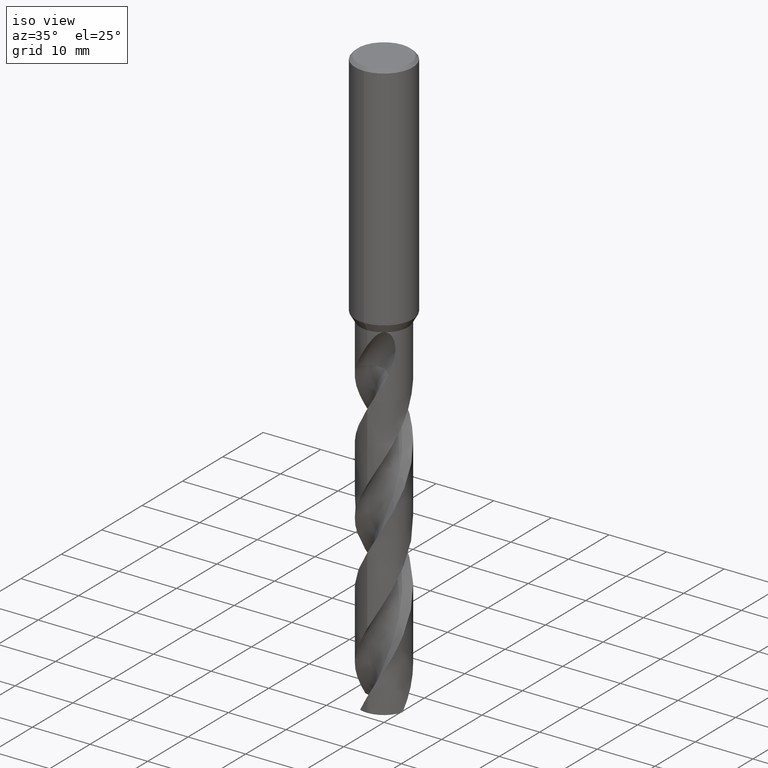
[diagram: clean part render]
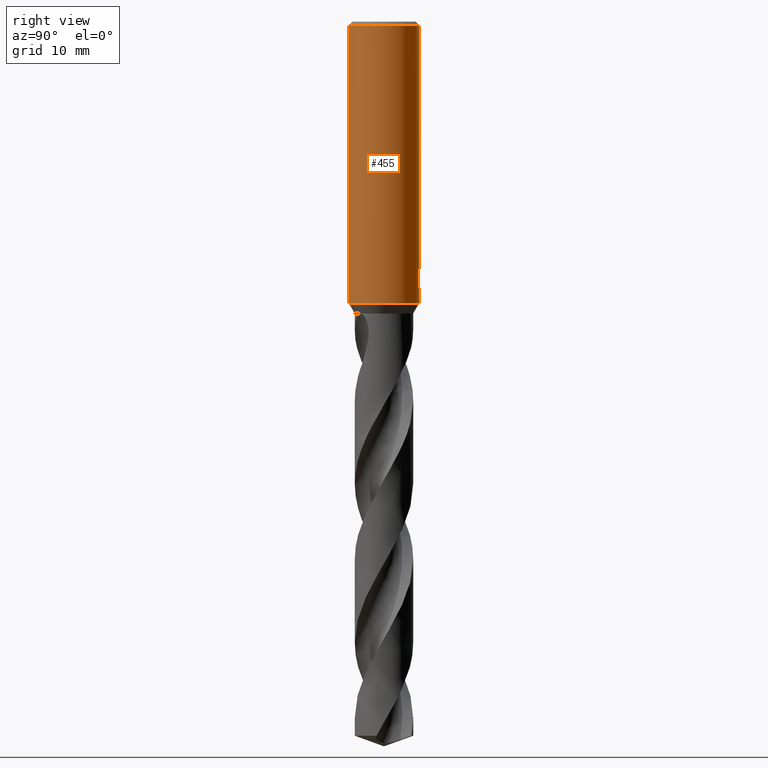
[diagram: tour spotlight — one face highlighted and labeled with its STEP entity id]
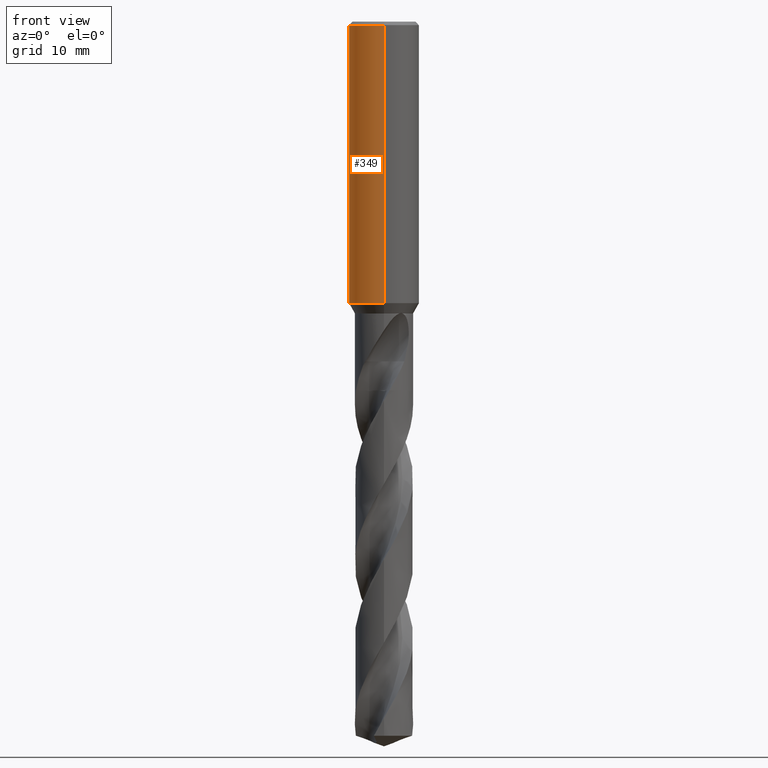
[diagram: tour spotlight — one face highlighted and labeled with its STEP entity id]
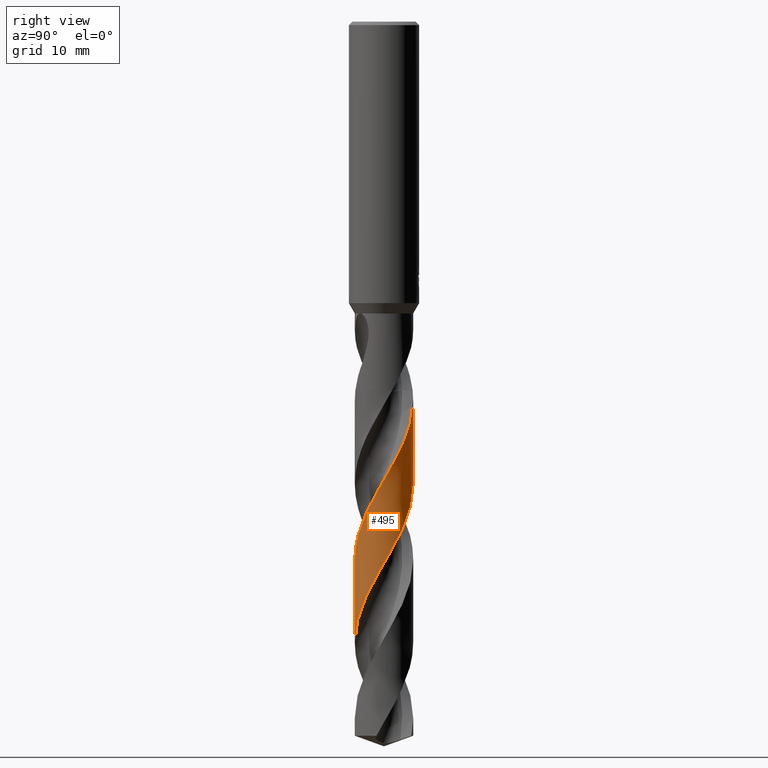
[diagram: tour spotlight — one face highlighted and labeled with its STEP entity id]
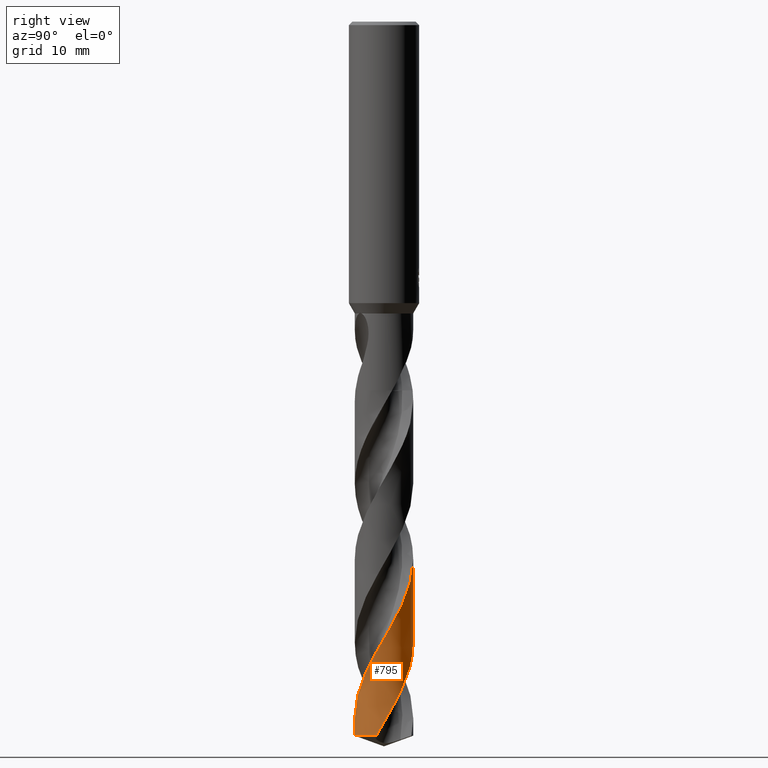
[diagram: tour spotlight — one face highlighted and labeled with its STEP entity id]
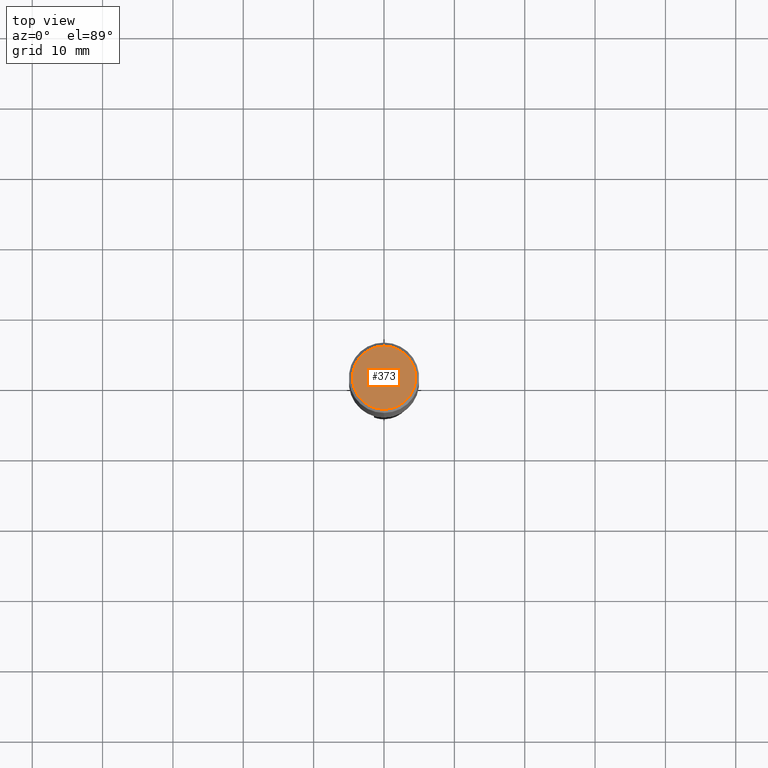
[diagram: tour spotlight — one face highlighted and labeled with its STEP entity id]
A machine part: a face-by-face anatomy tour. The part has 52 B-rep faces; the first image is the clean iso view, then the 5 largest visible faces are spotlighted one at a time (largest first), each with its STEP entity span.

Face 1 — right view, entity #455. In plain terms, the highlighted cylindrical surface (edge-blend (fillet) strip) has radius 5 mm, axis along (-0, -0, 1).
Definition (entity closure, byte-faithful):
#313=VERTEX_POINT('',#884);
#321=VERTEX_POINT('',#892);
#375=VERTEX_POINT('',#954);
#385=EDGE_CURVE('',#627,#621,#964,.T.);
#429=EDGE_CURVE('',#787,#653,#1010,.T.);
#439=VERTEX_POINT('',#1021);
#443=VERTEX_POINT('',#1025);
#455=ADVANCED_FACE('',(#1041),#1042,.T.);
#499=EDGE_CURVE('',#827,#443,#1090,.T.);
#535=EDGE_CURVE('',#375,#439,#1129,.T.);
#621=VERTEX_POINT('',#1222);
#627=VERTEX_POINT('',#1229);
#637=EDGE_CURVE('',#321,#827,#1240,.T.);
#649=VERTEX_POINT('',#1252);
#653=VERTEX_POINT('',#1256);
#655=EDGE_CURVE('',#819,#375,#1258,.T.);
#663=EDGE_CURVE('',#787,#313,#1268,.T.);
#665=EDGE_CURVE('',#439,#321,#1270,.T.);
#787=VERTEX_POINT('',#1403);
#797=EDGE_CURVE('',#443,#313,#1414,.T.);
#811=EDGE_CURVE('',#621,#653,#1431,.T.);
#819=VERTEX_POINT('',#1439);
#825=EDGE_CURVE('',#649,#819,#1445,.T.);
#827=VERTEX_POINT('',#1447);
#833=EDGE_CURVE('',#649,#627,#1453,.T.);
#884=CARTESIAN_POINT('',(-9.82055749138764E-015,5.0,-36.0232688117743));
#892=CARTESIAN_POINT('',(1.33721006514658,4.81786978255646,-37.2901657003257));
#954=CARTESIAN_POINT('',(0.873560781758957,4.92309776061503,-36.3198931596091));
#964=CIRCLE('',#2044,5.0);
#1010=CIRCLE('',#2604,5.0);
#1021=CARTESIAN_POINT('',(0.873560781758956,4.92309776061503,-37.7587351791531));
#1025=CARTESIAN_POINT('',(0.799431726384364,4.93567714856332,-35.000000276873));
#1041=FACE_OUTER_BOUND('',#2727,.T.);
#1042=CYLINDRICAL_SURFACE('',#2728,5.0);
#1090=B_SPLINE_CURVE_WITH_KNOTS('',3,(#3127,#3128,#3129,#3130,#3131,#3132,#3133,#3134,#3135,#3136),.UNSPECIFIED.,.F.,.F.,(4,2,2,2,4),(0.618463277568802,0.927694916353203,1.2369265551376,1.54583876733634,1.85475097953508),.UNSPECIFIED.);
#1129=LINE('',#3291,#3292);
#1222=CARTESIAN_POINT('',(6.12303176911189E-016,-5.0,-40.0));
#1229=CARTESIAN_POINT('',(0.0,5.0,-40.0));
#1240=LINE('',#6021,#6022);
#1252=CARTESIAN_POINT('',(-4.2179236924284E-015,5.0,-38.0310253601033));
#1256=CARTESIAN_POINT('',(6.12303176911189E-016,-5.0,-0.5));
#1258=ELLIPSE('',#6149,15.2399728668489,5.0);
#1268=LINE('',#6484,#6485);
#1270=B_SPLINE_CURVE_WITH_KNOTS('',3,(#6488,#6489,#6490,#6491,#6492,#6493,#6494,#6495,#6496,#6497),.UNSPECIFIED.,.F.,.F.,(4,2,2,2,4),(8.03978938391207,8.34870158568316,8.65761378745426,8.96684541549285,9.27607704353144),.UNSPECIFIED.);
#1403=CARTESIAN_POINT('',(0.0,5.0,-0.5));
#1414=B_SPLINE_CURVE_WITH_KNOTS('',3,(#9426,#9427,#9428,#9429,#9430,#9431,#9432,#9433,#9434,#9435,#9436,#9437,#9438,#9439,#9440,#9441,#9442,#9443,#9444,#9445,#9446,#9447,#9448,#9449,#9450,#9451,#9452),.UNSPECIFIED.,.F.,.F.,(4,2,3,2,2,2,2,2,2,2,2,2,4),(-0.542486104801738,-0.271243052400869,0.0,0.271243052400869,0.542486104801738,0.814298814936944,1.08611152507215,1.35696845964793,1.62782539422372,1.89896433698445,2.17010327974519,2.44124222250593,2.71238116526667),.UNSPECIFIED.);
#1431=LINE('',#9474,#9475);
#1439=CARTESIAN_POINT('',(0.29010312703583,4.99157692274536,-37.9998328990228));
#1445=B_SPLINE_CURVE_WITH_KNOTS('',3,(#9492,#9493,#9494,#9495,#9496,#9497,#9498,#9499,#9500,#9501,#9502,#9503,#9504,#9505,#9506,#9507),.UNSPECIFIED.,.F.,.F.,(4,2,2,2,2,2,2,4),(5.87517564836087,6.18447732711524,6.49384941721167,6.80322150730809,7.11259359740452,7.42196568750094,7.73087791711931,8.03979014673767),.UNSPECIFIED.);
#1447=CARTESIAN_POINT('',(1.33721006514658,4.81786978255647,-35.5150484364821));
#1453=LINE('',#9516,#9517);
#2044=AXIS2_PLACEMENT_3D('',#9960,#9961,#9962);
#2604=AXIS2_PLACEMENT_3D('',#9994,#9995,#9996);
#2727=EDGE_LOOP('',(#10046,#10047,#10048,#10049,#10050,#10051,#10052,#10053,#10054,#10055,#10056,#10057));
#2728=AXIS2_PLACEMENT_3D('',#10058,#10059,#10060);
#3127=CARTESIAN_POINT('',(1.47544634459503,4.77734843655151,-35.7772211678144));
#3128=CARTESIAN_POINT('',(1.43377097583397,4.79021953600577,-35.6770080394811));
#3129=CARTESIAN_POINT('',(1.38199542398865,4.8056132724731,-35.5811155297459));
#3130=CARTESIAN_POINT('',(1.26262396572432,4.83834796156109,-35.4039520264488));
#3131=CARTESIAN_POINT('',(1.19501792490561,4.8556548500921,-35.3226815690952));
#3132=CARTESIAN_POINT('',(1.05119213349515,4.88880718633437,-35.178908059153));
#3133=CARTESIAN_POINT('',(0.969955783216372,4.90584149133193,-35.1113633587199));
#3134=CARTESIAN_POINT('',(0.792829662772183,4.93756175507685,-34.9920776587655));
#3135=CARTESIAN_POINT('',(0.696940397087141,4.95221768350352,-34.9403279265819));
#3136=CARTESIAN_POINT('',(0.596736525802593,4.96426283739822,-34.8986787609541));
#3291=CARTESIAN_POINT('',(0.873560781758957,4.92309776061503,-37.0393141693811));
#3292=VECTOR('',#10126,1.0);
#6021=CARTESIAN_POINT('',(1.33721006514658,4.81786978255646,-36.4026070684039));
#6022=VECTOR('',#10223,1.0);
#6149=AXIS2_PLACEMENT_3D('',#10227,#10228,#10229);
#6484=CARTESIAN_POINT('',(-6.12303176911189E-016,5.0,-20.25));
#6485=VECTOR('',#10261,1.0);
#6488=CARTESIAN_POINT('',(0.596736548110758,4.96426283471664,-37.9065353597382));
#6489=CARTESIAN_POINT('',(0.696940415976904,4.95221768077604,-37.8648861955132));
#6490=CARTESIAN_POINT('',(0.792829678386026,4.93756175251447,-37.8131364650754));
#6491=CARTESIAN_POINT('',(0.969955792779445,4.90584148938556,-37.6938507691423));
#6492=CARTESIAN_POINT('',(1.05119214028325,4.88880718483703,-37.6263060709848));
#6493=CARTESIAN_POINT('',(1.1950179267128,4.85565484960812,-37.4825325659411));
#6494=CARTESIAN_POINT('',(1.26262396516471,4.83834796167932,-37.4012621113954));
#6495=CARTESIAN_POINT('',(1.38199541925443,4.80561327380657,-37.2240986142183));
#6496=CARTESIAN_POINT('',(1.4337709692914,4.79021953794996,-37.1282061077952));
#6497=CARTESIAN_POINT('',(1.47544633659597,4.77734843902196,-37.0279929829259));
#9426=CARTESIAN_POINT('',(0.665122770091172,4.95556371169883,-34.8135963457478));
#9427=CARTESIAN_POINT('',(0.728735196954596,4.94702581852882,-34.8772777273236));
#9428=CARTESIAN_POINT('',(0.783964166103465,4.93829748078097,-34.9579436035979));
#9429=CARTESIAN_POINT('',(0.857301933462898,4.92609533329604,-35.1349114173306));
#9430=CARTESIAN_POINT('',(0.875400981188567,4.92277087849253,-35.2312276617865));
#9431=CARTESIAN_POINT('',(0.875400981188567,4.92277087849253,-35.3216420125868));
#9432=CARTESIAN_POINT('',(0.875400981188567,4.92277087849253,-35.4120563633871));
#9433=CARTESIAN_POINT('',(0.857301933462898,4.92609533329604,-35.5083726078429));
#9434=CARTESIAN_POINT('',(0.783964166103465,4.93829748078097,-35.6853404215757));
#9435=CARTESIAN_POINT('',(0.728735196954596,4.94702581852882,-35.76600629785));
#9436=CARTESIAN_POINT('',(0.601376746032753,4.96411953593411,-35.8935028030135));
#9437=CARTESIAN_POINT('',(0.520641197115554,4.97361399538109,-35.9488552844728));
#9438=CARTESIAN_POINT('',(0.343503822480858,4.98897870858442,-36.0223670116056));
#9439=CARTESIAN_POINT('',(0.247086219827461,4.9947129574863,-36.0405166027747));
#9440=CARTESIAN_POINT('',(0.0662849978754683,5.00037576555244,-36.0405166027747));
#9441=CARTESIAN_POINT('',(-0.0299853354073752,5.00069421157822,-36.022481035651));
#9442=CARTESIAN_POINT('',(-0.207042529230845,4.99649628332508,-35.9491606175219));
#9443=CARTESIAN_POINT('',(-0.287834149954029,4.99211780487336,-35.8938794313977));
#9444=CARTESIAN_POINT('',(-0.415469449620835,4.98311973872716,-35.7663325263823));
#9445=CARTESIAN_POINT('',(-0.470822894462521,4.97792007270922,-35.6855206130663));
#9446=CARTESIAN_POINT('',(-0.544264412763406,4.97042641093864,-35.5083690868499));
#9447=CARTESIAN_POINT('',(-0.562348199187247,4.96827580785033,-35.4120216601737));
#9448=CARTESIAN_POINT('',(-0.562348199187247,4.96827580785033,-35.2312623649999));
#9449=CARTESIAN_POINT('',(-0.544264412763406,4.97042641093864,-35.1349149383237));
#9450=CARTESIAN_POINT('',(-0.470822894462521,4.97792007270922,-34.9577634121072));
#9451=CARTESIAN_POINT('',(-0.415469449620836,4.98311973872716,-34.8769514987913));
#9452=CARTESIAN_POINT('',(-0.351618594554054,4.98762111271133,-34.8131448640467));
#9474=CARTESIAN_POINT('',(6.12303176911189E-016,-5.0,-20.25));
#9475=VECTOR('',#10420,1.0);
#9492=CARTESIAN_POINT('',(-1.37919625933141,4.80601890115366,-37.3124404256203));
#9493=CARTESIAN_POINT('',(-1.31957521374487,4.82312851403775,-37.4009601597598));
#9494=CARTESIAN_POINT('',(-1.25205684175205,4.84126211135571,-37.4821654513649));
#9495=CARTESIAN_POINT('',(-1.10836495207318,4.87616599259845,-37.6259115514073));
#9496=CARTESIAN_POINT('',(-1.0271524301646,4.89418890879516,-37.693486795378));
#9497=CARTESIAN_POINT('',(-0.850055905397219,4.9280353232664,-37.8128453591325));
#9498=CARTESIAN_POINT('',(-0.754172188044363,4.94382885968066,-37.8646375967458));
#9499=CARTESIAN_POINT('',(-0.553725999780852,4.97027232652294,-37.9480281920328));
#9500=CARTESIAN_POINT('',(-0.448990720596507,4.98092390938096,-37.9796924022892));
#9501=CARTESIAN_POINT('',(-0.237871423561604,4.99545922254228,-38.0213202804398));
#9502=CARTESIAN_POINT('',(-0.13148454027928,4.99933459384723,-38.0312723335086));
#9503=CARTESIAN_POINT('',(0.0746069172274575,5.00050365281921,-38.0312723335086));
#9504=CARTESIAN_POINT('',(0.180879006433096,4.99784409598263,-38.021349312763));
#9505=CARTESIAN_POINT('',(0.391840688075154,4.98574204084828,-37.9798000876985));
#9506=CARTESIAN_POINT('',(0.496532945230264,4.97630796240248,-37.9481849619546));
#9507=CARTESIAN_POINT('',(0.596736821506944,4.96426280185264,-37.9065357940623));
#9516=CARTESIAN_POINT('',(-6.12303176911189E-016,5.0,-20.25));
#9517=VECTOR('',#10422,1.0);
#9960=CARTESIAN_POINT('',(0.0,0.0,-40.0));
#9961=DIRECTION('',(0.0,0.0,-1.0));
#9962=DIRECTION('',(0.0,1.0,0.0));
#9994=CARTESIAN_POINT('',(0.0,0.0,-0.5));
#9995=DIRECTION('',(0.0,0.0,-1.0));
#9996=DIRECTION('',(0.0,1.0,0.0));
#10046=ORIENTED_EDGE('',*,*,#663,.F.);
#10047=ORIENTED_EDGE('',*,*,#429,.T.);
#10048=ORIENTED_EDGE('',*,*,#811,.F.);
#10049=ORIENTED_EDGE('',*,*,#385,.F.);
#10050=ORIENTED_EDGE('',*,*,#833,.F.);
#10051=ORIENTED_EDGE('',*,*,#825,.T.);
#10052=ORIENTED_EDGE('',*,*,#655,.T.);
#10053=ORIENTED_EDGE('',*,*,#535,.T.);
#10054=ORIENTED_EDGE('',*,*,#665,.T.);
#10055=ORIENTED_EDGE('',*,*,#637,.T.);
#10056=ORIENTED_EDGE('',*,*,#499,.T.);
#10057=ORIENTED_EDGE('',*,*,#797,.T.);
#10058=CARTESIAN_POINT('',(0.0,0.0,-20.25));
#10059=DIRECTION('',(-0.0,-0.0,1.0));
#10060=DIRECTION('',(0.0,1.0,0.0));
#10126=DIRECTION('',(0.0,0.0,-1.0));
#10223=DIRECTION('',(-0.0,-0.0,1.0));
#10227=CARTESIAN_POINT('',(0.0,0.0,-38.8351219173269));
#10228=DIRECTION('',(0.944648353914092,0.0,-0.328084573619969));
#10229=DIRECTION('',(0.328084573619969,-0.0,0.944648353914092));
#10261=DIRECTION('',(0.0,0.0,-1.0));
#10420=DIRECTION('',(-0.0,-0.0,1.0));
#10422=DIRECTION('',(0.0,0.0,-1.0));

Face 2 — front view, entity #349. In plain terms, the highlighted cylindrical surface (edge-blend (fillet) strip) has radius 5 mm, axis along (-0, -0, 1).
Definition (entity closure, byte-faithful):
#309=VERTEX_POINT('',#880);
#313=VERTEX_POINT('',#884);
#319=EDGE_CURVE('',#621,#627,#890,.T.);
#339=EDGE_CURVE('',#697,#645,#911,.T.);
#349=ADVANCED_FACE('',(#922),#923,.T.);
#359=EDGE_CURVE('',#361,#725,#936,.T.);
#361=VERTEX_POINT('',#938);
#395=EDGE_CURVE('',#309,#697,#974,.T.);
#489=EDGE_CURVE('',#751,#361,#1079,.T.);
#525=EDGE_CURVE('',#313,#751,#1118,.T.);
#561=EDGE_CURVE('',#653,#787,#1158,.T.);
#613=EDGE_CURVE('',#645,#649,#1214,.T.);
#621=VERTEX_POINT('',#1222);
#627=VERTEX_POINT('',#1229);
#645=VERTEX_POINT('',#1248);
#649=VERTEX_POINT('',#1252);
#653=VERTEX_POINT('',#1256);
#663=EDGE_CURVE('',#787,#313,#1268,.T.);
#697=VERTEX_POINT('',#1304);
#725=VERTEX_POINT('',#1335);
#727=EDGE_CURVE('',#725,#309,#1337,.T.);
#751=VERTEX_POINT('',#1365);
#787=VERTEX_POINT('',#1403);
#811=EDGE_CURVE('',#621,#653,#1431,.T.);
#833=EDGE_CURVE('',#649,#627,#1453,.T.);
#880=CARTESIAN_POINT('',(-1.03127136200798E-015,5.0,-36.5000801551882));
#884=CARTESIAN_POINT('',(-9.82055749138764E-015,5.0,-36.0232688117743));
#890=CIRCLE('',#1507,5.0);
#911=ELLIPSE('',#1610,5.5746421602143,5.0);
#922=FACE_OUTER_BOUND('',#1632,.T.);
#923=CYLINDRICAL_SURFACE('',#1633,5.0);
#936=CIRCLE('',#1895,5.0);
#938=CARTESIAN_POINT('',(-0.562333990228013,4.96827741611056,-35.3171221986971));
#974=LINE('',#2071,#2072);
#1079=B_SPLINE_CURVE_WITH_KNOTS('',3,(#3069,#3070,#3071,#3072,#3073,#3074,#3075,#3076,#3077,#3078,#3079,#3080,#3081,#3082,#3083,#3084,#3085,#3086,#3087,#3088,#3089,#3090,#3091,#3092,#3093,#3094,#3095),.UNSPECIFIED.,.F.,.F.,(4,2,3,2,2,2,2,2,2,2,2,2,4),(-0.542486104801738,-0.271243052400869,0.0,0.271243052400869,0.542486104801738,0.814298814936944,1.08611152507215,1.35696845964793,1.62782539422372,1.89896433698445,2.17010327974519,2.44124222250593,2.71238116526667),.UNSPECIFIED.);
#1118=B_SPLINE_CURVE_WITH_KNOTS('',3,(#3249,#3250,#3251,#3252,#3253,#3254,#3255,#3256,#3257,#3258,#3259,#3260,#3261,#3262,#3263,#3264,#3265,#3266,#3267,#3268,#3269,#3270,#3271,#3272,#3273,#3274,#3275),.UNSPECIFIED.,.F.,.F.,(4,2,3,2,2,2,2,2,2,2,2,2,4),(-0.542486104801738,-0.271243052400869,0.0,0.271243052400869,0.542486104801738,0.814298814936944,1.08611152507215,1.35696845964793,1.62782539422372,1.89896433698445,2.17010327974519,2.44124222250593,2.71238116526667),.UNSPECIFIED.);
#1158=CIRCLE('',#4764,5.0);
#1214=B_SPLINE_CURVE_WITH_KNOTS('',3,(#5956,#5957,#5958,#5959,#5960,#5961,#5962,#5963,#5964,#5965,#5966,#5967,#5968,#5969,#5970,#5971),.UNSPECIFIED.,.F.,.F.,(4,2,2,2,2,2,2,4),(5.87517564836087,6.18447732711524,6.49384941721167,6.80322150730809,7.11259359740452,7.42196568750094,7.73087791711931,8.03979014673767),.UNSPECIFIED.);
#1222=CARTESIAN_POINT('',(6.12303176911189E-016,-5.0,-40.0));
#1229=CARTESIAN_POINT('',(0.0,5.0,-40.0));
#1248=CARTESIAN_POINT('',(-1.337052752443,4.81791344226778,-37.3720803908795));
#1252=CARTESIAN_POINT('',(-4.2179236924284E-015,5.0,-38.0310253601033));
#1256=CARTESIAN_POINT('',(6.12303176911189E-016,-5.0,-0.5));
#1268=LINE('',#6484,#6485);
#1304=CARTESIAN_POINT('',(-6.12289151258669E-016,5.0,-36.7128911336578));
#1335=CARTESIAN_POINT('',(-1.0350734039088,4.89168918151191,-35.3171221986971));
#1337=B_SPLINE_CURVE_WITH_KNOTS('',3,(#8432,#8433,#8434,#8435,#8436,#8437,#8438,#8439,#8440,#8441,#8442,#8443,#8444,#8445),.UNSPECIFIED.,.F.,.F.,(4,2,2,2,2,2,4),(3.1333306003147,3.58067338374496,4.02801616717522,4.47535895060548,4.92178692976237,5.36821490891926,5.81712521768469),.UNSPECIFIED.);
#1365=CARTESIAN_POINT('',(-0.486378944383044,4.97628732314171,-35.6432837483006));
#1403=CARTESIAN_POINT('',(0.0,5.0,-0.5));
#1431=LINE('',#9474,#9475);
#1453=LINE('',#9516,#9517);
#1507=AXIS2_PLACEMENT_3D('',#9868,#9869,#9870);
#1610=AXIS2_PLACEMENT_3D('',#9887,#9888,#9889);
#1632=EDGE_LOOP('',(#9904,#9905,#9906,#9907,#9908,#9909,#9910,#9911,#9912,#9913,#9914,#9915));
#1633=AXIS2_PLACEMENT_3D('',#9916,#9917,#9918);
#1895=AXIS2_PLACEMENT_3D('',#9943,#9944,#9945);
#2071=CARTESIAN_POINT('',(-6.12303176911189E-016,5.0,-20.25));
#2072=VECTOR('',#9965,1.0);
#3069=CARTESIAN_POINT('',(0.665122770091172,4.95556371169883,-34.8135963457478));
#3070=CARTESIAN_POINT('',(0.728735196954596,4.94702581852882,-34.8772777273236));
#3071=CARTESIAN_POINT('',(0.783964166103465,4.93829748078097,-34.9579436035979));
#3072=CARTESIAN_POINT('',(0.857301933462898,4.92609533329604,-35.1349114173306));
#3073=CARTESIAN_POINT('',(0.875400981188567,4.92277087849253,-35.2312276617865));
#3074=CARTESIAN_POINT('',(0.875400981188567,4.92277087849253,-35.3216420125868));
#3075=CARTESIAN_POINT('',(0.875400981188567,4.92277087849253,-35.4120563633871));
#3076=CARTESIAN_POINT('',(0.857301933462898,4.92609533329604,-35.5083726078429));
#3077=CARTESIAN_POINT('',(0.783964166103465,4.93829748078097,-35.6853404215757));
#3078=CARTESIAN_POINT('',(0.728735196954596,4.94702581852882,-35.76600629785));
#3079=CARTESIAN_POINT('',(0.601376746032753,4.96411953593411,-35.8935028030135));
#3080=CARTESIAN_POINT('',(0.520641197115554,4.97361399538109,-35.9488552844728));
#3081=CARTESIAN_POINT('',(0.343503822480858,4.98897870858442,-36.0223670116056));
#3082=CARTESIAN_POINT('',(0.247086219827461,4.9947129574863,-36.0405166027747));
#3083=CARTESIAN_POINT('',(0.0662849978754683,5.00037576555244,-36.0405166027747));
#3084=CARTESIAN_POINT('',(-0.0299853354073752,5.00069421157822,-36.022481035651));
#3085=CARTESIAN_POINT('',(-0.207042529230845,4.99649628332508,-35.9491606175219));
#3086=CARTESIAN_POINT('',(-0.287834149954029,4.99211780487336,-35.8938794313977));
#3087=CARTESIAN_POINT('',(-0.415469449620835,4.98311973872716,-35.7663325263823));
#3088=CARTESIAN_POINT('',(-0.470822894462521,4.97792007270922,-35.6855206130663));
#3089=CARTESIAN_POINT('',(-0.544264412763406,4.97042641093864,-35.5083690868499));
#3090=CARTESIAN_POINT('',(-0.562348199187247,4.96827580785033,-35.4120216601737));
#3091=CARTESIAN_POINT('',(-0.562348199187247,4.96827580785033,-35.2312623649999));
#3092=CARTESIAN_POINT('',(-0.544264412763406,4.97042641093864,-35.1349149383237));
#3093=CARTESIAN_POINT('',(-0.470822894462521,4.97792007270922,-34.9577634121072));
#3094=CARTESIAN_POINT('',(-0.415469449620836,4.98311973872716,-34.8769514987913));
#3095=CARTESIAN_POINT('',(-0.351618594554054,4.98762111271133,-34.8131448640467));
#3249=CARTESIAN_POINT('',(0.665122770091172,4.95556371169883,-34.8135963457478));
#3250=CARTESIAN_POINT('',(0.728735196954596,4.94702581852882,-34.8772777273236));
#3251=CARTESIAN_POINT('',(0.783964166103465,4.93829748078097,-34.9579436035979));
#3252=CARTESIAN_POINT('',(0.857301933462898,4.92609533329604,-35.1349114173306));
#3253=CARTESIAN_POINT('',(0.875400981188567,4.92277087849253,-35.2312276617865));
#3254=CARTESIAN_POINT('',(0.875400981188567,4.92277087849253,-35.3216420125868));
#3255=CARTESIAN_POINT('',(0.875400981188567,4.92277087849253,-35.4120563633871));
#3256=CARTESIAN_POINT('',(0.857301933462898,4.92609533329604,-35.5083726078429));
#3257=CARTESIAN_POINT('',(0.783964166103465,4.93829748078097,-35.6853404215757));
#3258=CARTESIAN_POINT('',(0.728735196954596,4.94702581852882,-35.76600629785));
#3259=CARTESIAN_POINT('',(0.601376746032753,4.96411953593411,-35.8935028030135));
#3260=CARTESIAN_POINT('',(0.520641197115554,4.97361399538109,-35.9488552844728));
#3261=CARTESIAN_POINT('',(0.343503822480858,4.98897870858442,-36.0223670116056));
#3262=CARTESIAN_POINT('',(0.247086219827461,4.9947129574863,-36.0405166027747));
#3263=CARTESIAN_POINT('',(0.0662849978754683,5.00037576555244,-36.0405166027747));
#3264=CARTESIAN_POINT('',(-0.0299853354073752,5.00069421157822,-36.022481035651));
#3265=CARTESIAN_POINT('',(-0.207042529230845,4.99649628332508,-35.9491606175219));
#3266=CARTESIAN_POINT('',(-0.287834149954029,4.99211780487336,-35.8938794313977));
#3267=CARTESIAN_POINT('',(-0.415469449620835,4.98311973872716,-35.7663325263823));
#3268=CARTESIAN_POINT('',(-0.470822894462521,4.97792007270922,-35.6855206130663));
#3269=CARTESIAN_POINT('',(-0.544264412763406,4.97042641093864,-35.5083690868499));
#3270=CARTESIAN_POINT('',(-0.562348199187247,4.96827580785033,-35.4120216601737));
#3271=CARTESIAN_POINT('',(-0.562348199187247,4.96827580785033,-35.2312623649999));
#3272=CARTESIAN_POINT('',(-0.544264412763406,4.97042641093864,-35.1349149383237));
#3273=CARTESIAN_POINT('',(-0.470822894462521,4.97792007270922,-34.9577634121072));
#3274=CARTESIAN_POINT('',(-0.415469449620836,4.98311973872716,-34.8769514987913));
#3275=CARTESIAN_POINT('',(-0.351618594554054,4.98762111271133,-34.8131448640467));
#4764=AXIS2_PLACEMENT_3D('',#10156,#10157,#10158);
#5956=CARTESIAN_POINT('',(-1.37919625933141,4.80601890115366,-37.3124404256203));
#5957=CARTESIAN_POINT('',(-1.31957521374487,4.82312851403775,-37.4009601597598));
#5958=CARTESIAN_POINT('',(-1.25205684175205,4.84126211135571,-37.4821654513649));
#5959=CARTESIAN_POINT('',(-1.10836495207318,4.87616599259845,-37.6259115514073));
#5960=CARTESIAN_POINT('',(-1.0271524301646,4.89418890879516,-37.693486795378));
#5961=CARTESIAN_POINT('',(-0.850055905397219,4.9280353232664,-37.8128453591325));
#5962=CARTESIAN_POINT('',(-0.754172188044363,4.94382885968066,-37.8646375967458));
#5963=CARTESIAN_POINT('',(-0.553725999780852,4.97027232652294,-37.9480281920328));
#5964=CARTESIAN_POINT('',(-0.448990720596507,4.98092390938096,-37.9796924022892));
#5965=CARTESIAN_POINT('',(-0.237871423561604,4.99545922254228,-38.0213202804398));
#5966=CARTESIAN_POINT('',(-0.13148454027928,4.99933459384723,-38.0312723335086));
#5967=CARTESIAN_POINT('',(0.0746069172274575,5.00050365281921,-38.0312723335086));
#5968=CARTESIAN_POINT('',(0.180879006433096,4.99784409598263,-38.021349312763));
#5969=CARTESIAN_POINT('',(0.391840688075154,4.98574204084828,-37.9798000876985));
#5970=CARTESIAN_POINT('',(0.496532945230264,4.97630796240248,-37.9481849619546));
#5971=CARTESIAN_POINT('',(0.596736821506944,4.96426280185264,-37.9065357940623));
#6484=CARTESIAN_POINT('',(-6.12303176911189E-016,5.0,-20.25));
#6485=VECTOR('',#10261,1.0);
#8432=CARTESIAN_POINT('',(-0.94469265800956,4.90994458032907,-34.8726918261735));
#8433=CARTESIAN_POINT('',(-1.00520381961469,4.89830199881157,-35.0184504386447));
#8434=CARTESIAN_POINT('',(-1.03510901790186,4.89168164551397,-35.1771875995894));
#8435=CARTESIAN_POINT('',(-1.03510901790186,4.89168164551397,-35.4754161218762));
#8436=CARTESIAN_POINT('',(-1.00520381961469,4.89830199881157,-35.6341532828209));
#8437=CARTESIAN_POINT('',(-0.884181496404448,4.92158716184659,-35.9256705077633));
#8438=CARTESIAN_POINT('',(-0.793087151052211,4.93783860177885,-36.058492898329));
#8439=CARTESIAN_POINT('',(-0.583306946064695,4.96698544190891,-36.2680190096183));
#8440=CARTESIAN_POINT('',(-0.4505605241988,4.98179488059623,-36.3589053581256));
#8441=CARTESIAN_POINT('',(-0.159315965562919,4.99959032724121,-36.4795914963682));
#8442=CARTESIAN_POINT('',(-0.000786407488332613,5.0022138695964,-36.5093686300866));
#8443=CARTESIAN_POINT('',(0.297528991236319,4.99338238693841,-36.5093686300866));
#8444=CARTESIAN_POINT('',(0.45644235283975,4.98128588348605,-36.4792943689047));
#8445=CARTESIAN_POINT('',(0.602168559078807,4.96360685655673,-36.4187026676641));
#9474=CARTESIAN_POINT('',(6.12303176911189E-016,-5.0,-20.25));
#9475=VECTOR('',#10420,1.0);
#9516=CARTESIAN_POINT('',(-6.12303176911189E-016,5.0,-20.25));
#9517=VECTOR('',#10422,1.0);
#9868=CARTESIAN_POINT('',(0.0,0.0,-40.0));
#9869=DIRECTION('',(0.0,0.0,-1.0));
#9870=DIRECTION('',(0.0,1.0,0.0));
#9887=CARTESIAN_POINT('',(0.0,0.0,-36.7128911336578));
#9888=DIRECTION('',(-0.442195774284071,0.0,0.896918556617774));
#9889=DIRECTION('',(0.896918556617774,-0.0,0.442195774284071));
#9904=ORIENTED_EDGE('',*,*,#663,.T.);
#9905=ORIENTED_EDGE('',*,*,#525,.T.);
#9906=ORIENTED_EDGE('',*,*,#489,.T.);
#9907=ORIENTED_EDGE('',*,*,#359,.T.);
#9908=ORIENTED_EDGE('',*,*,#727,.T.);
#9909=ORIENTED_EDGE('',*,*,#395,.T.);
#9910=ORIENTED_EDGE('',*,*,#339,.T.);
#9911=ORIENTED_EDGE('',*,*,#613,.T.);
#9912=ORIENTED_EDGE('',*,*,#833,.T.);
#9913=ORIENTED_EDGE('',*,*,#319,.F.);
#9914=ORIENTED_EDGE('',*,*,#811,.T.);
#9915=ORIENTED_EDGE('',*,*,#561,.T.);
#9916=CARTESIAN_POINT('',(0.0,0.0,-20.25));
#9917=DIRECTION('',(-0.0,-0.0,1.0));
#9918=DIRECTION('',(0.0,1.0,0.0));
#9943=CARTESIAN_POINT('',(0.0,0.0,-35.3171221986971));
#9944=DIRECTION('',(0.0,-0.0,1.0));
#9945=DIRECTION('',(0.0,1.0,0.0));
#9965=DIRECTION('',(0.0,0.0,-1.0));
#10156=CARTESIAN_POINT('',(0.0,0.0,-0.5));
#10157=DIRECTION('',(0.0,0.0,-1.0));
#10158=DIRECTION('',(0.0,1.0,0.0));
#10261=DIRECTION('',(0.0,0.0,-1.0));
#10420=DIRECTION('',(-0.0,-0.0,1.0));
#10422=DIRECTION('',(0.0,0.0,-1.0));

Face 3 — right view, entity #495. In plain terms, the highlighted conical surface has half-angle 0 deg.
Definition (entity closure, byte-faithful):
#407=EDGE_CURVE('',#549,#545,#986,.T.);
#461=VERTEX_POINT('',#1049);
#495=ADVANCED_FACE('',(#1085),#1086,.T.);
#545=VERTEX_POINT('',#1141);
#549=VERTEX_POINT('',#1145);
#555=EDGE_CURVE('',#707,#545,#1152,.T.);
#689=EDGE_CURVE('',#707,#461,#1295,.T.);
#707=VERTEX_POINT('',#1316);
#773=EDGE_CURVE('',#549,#461,#1388,.T.);
#986=B_SPLINE_CURVE_WITH_KNOTS('',3,(#2099,#2100,#2101,#2102,#2103,#2104,#2105,#2106,#2107,#2108,#2109,#2110,#2111,#2112,#2113,#2114,#2115,#2116,#2117,#2118,#2119,#2120,#2121,#2122,#2123,#2124,#2125,#2126,#2127,#2128,#2129,#2130,#2131,#2132,#2133,#2134,#2135,#2136,#2137,#2138,#2139,#2140,#2141,#2142,#2143,#2144,#2145,#2146,#2147,#2148,#2149,#2150,#2151,#2152,#2153,#2154,#2155,#2156,#2157,#2158,#2159,#2160,#2161,#2162,#2163,#2164,#2165,#2166,#2167,#2168,#2169,#2170,#2171,#2172),.UNSPECIFIED.,.F.,.F.,(4,2,2,2,2,2,2,2,2,2,2,2,2,2,2,2,2,2,2,2,2,2,2,2,2,2,2,2,2,2,2,2,2,2,2,2,4),(0.0,0.733119962136167,3.94510879813884,4.34369131643443,5.32151416461971,6.12538844798272,6.17531505432983,7.64100654946401,8.37814269390565,9.8527233512437,10.575811062794,13.3147641823529,15.249658534027,17.2118726950978,19.1514968289801,21.1132472757636,23.0534574584097,25.0148424830024,26.9564301644431,28.9178713151104,30.9513168632988,33.1021604851118,34.7661922859804,36.5871046538584,37.1115938430845,37.9562288501293,41.3386930440463,41.9212233386471,45.3037452177209,45.8576423691643,48.8209535436904,50.3189651381546,53.4896423513451,53.5390767551717,55.1003001866832,55.8799575069006,56.6606755830554),.UNSPECIFIED.);
#1049=CARTESIAN_POINT('',(-9.8340353032395E-013,-4.14994886221189,-76.3862270031662));
#1085=FACE_OUTER_BOUND('',#3121,.T.);
#1086=CONICAL_SURFACE('',#3122,4.14995,2.03709453286926E-006);
#1141=CARTESIAN_POINT('',(-3.68914943617083E-014,4.14992711721499,-65.7117116335733));
#1145=CARTESIAN_POINT('',(6.98160187065E-016,-4.14997308674582,-88.27793528246));
#1152=LINE('',#4755,#4756);
#1295=B_SPLINE_CURVE_WITH_KNOTS('',3,(#6911,#6912,#6913,#6914,#6915,#6916,#6917,#6918,#6919,#6920,#6921,#6922,#6923,#6924,#6925,#6926,#6927,#6928,#6929,#6930,#6931,#6932,#6933,#6934,#6935,#6936,#6937,#6938,#6939,#6940,#6941,#6942,#6943,#6944,#6945,#6946,#6947,#6948,#6949,#6950,#6951,#6952,#6953,#6954,#6955,#6956,#6957,#6958,#6959,#6960,#6961,#6962,#6963,#6964,#6965,#6966,#6967,#6968,#6969,#6970,#6971,#6972,#6973,#6974,#6975,#6976,#6977,#6978,#6979,#6980,#6981,#6982,#6983,#6984,#6985,#6986,#6987,#6988,#6989,#6990),.UNSPECIFIED.,.F.,.F.,(4,2,2,2,2,2,2,2,2,2,2,2,2,2,2,2,2,2,2,2,2,2,2,2,2,2,2,2,2,2,2,2,2,2,2,2,2,2,2,4),(0.0,0.586323067433811,2.00032587518458,2.80826885337776,3.60002817015878,4.36102634170996,4.76487063530696,5.52221860866281,6.87547708728846,7.3452181545955,10.3637754003876,12.139995461408,14.502759818268,15.3668709821972,18.3301455580527,20.1540144764571,22.4042918982399,23.2648435883228,26.1943236443563,28.0619265002188,30.0624330206784,32.0233662836091,34.2830585381587,35.1337158030373,38.0947299511382,39.9172825066326,41.8348863796892,43.852057861484,45.2622052300865,45.9985746502462,46.9813536521083,49.2718370121449,50.1990534031825,51.0079979685766,52.4267538570986,52.6927656751572,53.6929488001075,55.1954998972303,55.9462757200825,56.696452853873),.UNSPECIFIED.);
#1316=CARTESIAN_POINT('',(1.24979024112577E-013,4.14990288187069,-53.8146965918974));
#1388=LINE('',#9299,#9300);
#2099=CARTESIAN_POINT('',(-4.00286083124982,1.09526488378203,-101.489523527795));
#2100=CARTESIAN_POINT('',(-4.03504066271313,0.977655728950244,-101.277743299675));
#2101=CARTESIAN_POINT('',(-4.06201011384078,0.858797654476587,-101.064850626866));
#2102=CARTESIAN_POINT('',(-4.17914587385562,0.210965987961346,-99.9207766518387));
#2103=CARTESIAN_POINT('',(-4.17149755588382,-0.330608218742273,-99.0052227548003));
#2104=CARTESIAN_POINT('',(-4.04702340763602,-0.921129931299631,-97.9593980896529));
#2105=CARTESIAN_POINT('',(-4.03172994710662,-0.985910536822844,-97.843831378145));
#2106=CARTESIAN_POINT('',(-3.97357622724045,-1.20820974671838,-97.4453482115644));
#2107=CARTESIAN_POINT('',(-3.92294640169079,-1.36369350358373,-97.1630093298879));
#2108=CARTESIAN_POINT('',(-3.8141033179038,-1.64106902712961,-96.6475302097936));
#2109=CARTESIAN_POINT('',(-3.75899442182016,-1.7636247738402,-96.4152861525449));
#2110=CARTESIAN_POINT('',(-3.6943372460219,-1.89059560983668,-96.1680921449709));
#2111=CARTESIAN_POINT('',(-3.69053573211859,-1.89800562287905,-96.1536413678278));
#2112=CARTESIAN_POINT('',(-3.5742942749695,-2.12291440030594,-95.7144563261599));
#2113=CARTESIAN_POINT('',(-3.44275266010804,-2.33024441643967,-95.2921013555985));
#2114=CARTESIAN_POINT('',(-3.2184128193831,-2.62286627300436,-94.6543537529134));
#2115=CARTESIAN_POINT('',(-3.13905767063328,-2.71733091713232,-94.4407123580425));
#2116=CARTESIAN_POINT('',(-2.88883969380872,-2.98960847752257,-93.8003976103759));
#2117=CARTESIAN_POINT('',(-2.70643187817836,-3.15562739345708,-93.3758597433649));
#2118=CARTESIAN_POINT('',(-2.41480373869133,-3.37721743262094,-92.7389793771779));
#2119=CARTESIAN_POINT('',(-2.31552818942792,-3.44605829696359,-92.5284513332559));
#2120=CARTESIAN_POINT('',(-1.82547022316747,-3.755002535148,-91.5235418678276));
#2121=CARTESIAN_POINT('',(-1.40007492136837,-3.93348288653247,-90.7451698808831));
#2122=CARTESIAN_POINT('',(-0.638700762875209,-4.11330122043334,-89.3902404456546));
#2123=CARTESIAN_POINT('',(-0.315930275489004,-4.150641464583,-88.8241412346744));
#2124=CARTESIAN_POINT('',(0.337806485620592,-4.14927706743415,-87.6939062714144));
#2125=CARTESIAN_POINT('',(0.665493723450718,-4.10943836864885,-87.1311549892286));
#2126=CARTESIAN_POINT('',(1.30062518471142,-3.9542693037718,-85.999542964849));
#2127=CARTESIAN_POINT('',(1.6060438598501,-3.84041913324769,-85.4323270855775));
#2128=CARTESIAN_POINT('',(2.18850943928793,-3.54133233999955,-84.3006472206212));
#2129=CARTESIAN_POINT('',(2.4622464239698,-3.35673622004514,-83.7378304449957));
#2130=CARTESIAN_POINT('',(2.95743497346943,-2.92942538638761,-82.6059180029684));
#2131=CARTESIAN_POINT('',(3.177644092677,-2.68900715728512,-82.0383217950532));
#2132=CARTESIAN_POINT('',(3.56019809962554,-2.157655759826,-80.9063583493413));
#2133=CARTESIAN_POINT('',(3.71995498628274,-1.86875357326637,-80.3435892494735));
#2134=CARTESIAN_POINT('',(3.9666132691593,-1.26257379099911,-79.2113491623315));
#2135=CARTESIAN_POINT('',(4.05331615848658,-0.948080209579002,-78.6433720256095));
#2136=CARTESIAN_POINT('',(4.15210135779381,-0.30073966376471,-77.5110211287447));
#2137=CARTESIAN_POINT('',(4.16286243563838,0.0292031213900084,-76.9482542342553));
#2138=CARTESIAN_POINT('',(4.1052444577117,0.696644840980988,-75.7895266640975));
#2139=CARTESIAN_POINT('',(4.03427834066105,1.03107071664337,-75.1947491400784));
#2140=CARTESIAN_POINT('',(3.80522546828506,1.6948692679812,-73.9810175393926));
#2141=CARTESIAN_POINT('',(3.64359698031552,2.01887360692878,-73.3651163403327));
#2142=CARTESIAN_POINT('',(3.28697934412767,2.54859972985332,-72.2580115767764));
#2143=CARTESIAN_POINT('',(3.10850483738276,2.7635547757794,-71.7709921611557));
#2144=CARTESIAN_POINT('',(2.69129450921086,3.17369855010188,-70.7589191275941));
#2145=CARTESIAN_POINT('',(2.45022798092235,3.36332653160746,-70.2352118870299));
#2146=CARTESIAN_POINT('',(2.11550376503302,3.57132612703493,-69.5545369313536));
#2147=CARTESIAN_POINT('',(2.03931561837821,3.61536489135379,-69.4023641816305));
#2148=CARTESIAN_POINT('',(1.83728483742688,3.72375354848006,-69.0045687433204));
#2149=CARTESIAN_POINT('',(1.70974800795879,3.78397939709404,-68.7581366416652));
#2150=CARTESIAN_POINT('',(1.05867954271813,4.05197820978874,-67.5324781895851));
#2151=CARTESIAN_POINT('',(0.500198915509941,4.157918701973,-66.5824873902307));
#2152=CARTESIAN_POINT('',(-0.159278628045266,4.1480007684965,-65.4345537535467));
#2153=CARTESIAN_POINT('',(-0.255827069197382,4.1431671893572,-65.2655329761599));
#2154=CARTESIAN_POINT('',(-0.91316890963133,4.08714268073476,-64.117093673756));
#2155=CARTESIAN_POINT('',(-1.45754746612428,3.92595406521365,-63.1684460864815));
#2156=CARTESIAN_POINT('',(-2.03447362167824,3.61817849226968,-62.0299117236023));
#2157=CARTESIAN_POINT('',(-2.11393608649308,3.57233118946485,-61.8694001149606));
#2158=CARTESIAN_POINT('',(-2.60945298085117,3.26409274044161,-60.8525140771719));
#2159=CARTESIAN_POINT('',(-2.97818509056936,2.93192305082293,-60.0162718507665));
#2160=CARTESIAN_POINT('',(-3.43357947129834,2.34406764895128,-58.7308568167197));
#2161=CARTESIAN_POINT('',(-3.56801388812336,2.13377870463037,-58.2967699271014));
#2162=CARTESIAN_POINT('',(-3.92561355716439,1.44530461308424,-56.9517384287197));
#2163=CARTESIAN_POINT('',(-4.07705321721444,0.936012705416754,-56.0520129936649));
#2164=CARTESIAN_POINT('',(-4.1301640999389,0.404385781712552,-55.1247942966925));
#2165=CARTESIAN_POINT('',(-4.1309547027472,0.396227793785232,-55.1105670046392));
#2166=CARTESIAN_POINT('',(-4.15596300872301,0.129947839233376,-54.6464363698268));
#2167=CARTESIAN_POINT('',(-4.15599510042753,-0.130144303806569,-54.1994393672908));
#2168=CARTESIAN_POINT('',(-4.11948157093959,-0.518075732752643,-53.5256073673882));
#2169=CARTESIAN_POINT('',(-4.10127565016572,-0.646504711659597,-53.3012527130088));
#2170=CARTESIAN_POINT('',(-4.05299455015468,-0.900945878530776,-52.8519320371249));
#2171=CARTESIAN_POINT('',(-4.02311329375068,-1.025975181467,-52.6277129986327));
#2172=CARTESIAN_POINT('',(-3.9876645377204,-1.14900027233581,-52.4048038270217));
#3121=EDGE_LOOP('',(#10089,#10090,#10091,#10092));
#3122=AXIS2_PLACEMENT_3D('',#10093,#10094,#10095);
#4755=CARTESIAN_POINT('',(-5.08271900396723E-016,4.14995,-76.9447617638976));
#4756=VECTOR('',#10152,1.0);
#6911=CARTESIAN_POINT('',(-0.809450641502194,4.07019160860088,-52.4036524301839));
#6912=CARTESIAN_POINT('',(-0.713554071194105,4.08926318517703,-52.5728780666497));
#6913=CARTESIAN_POINT('',(-0.617061507869635,4.10493025676811,-52.7422326771811));
#6914=CARTESIAN_POINT('',(-0.286437898108493,4.14670141869942,-53.3196699330514));
#6915=CARTESIAN_POINT('',(-0.0505770864741414,4.15628267541381,-53.7268509006525));
#6916=CARTESIAN_POINT('',(0.319420468947908,4.1397838602985,-54.3681220203433));
#6917=CARTESIAN_POINT('',(0.453611417218903,4.12723803772816,-54.6011374700635));
#6918=CARTESIAN_POINT('',(0.717674425384147,4.08950957126924,-55.0627661745399));
#6919=CARTESIAN_POINT('',(0.847371198748661,4.06461501494834,-55.2910471673395));
#6920=CARTESIAN_POINT('',(1.09891703601151,4.00377262506163,-55.7392168681408));
#6921=CARTESIAN_POINT('',(1.22076943418806,3.9683171334602,-55.9587997088806));
#6922=CARTESIAN_POINT('',(1.40450965677961,3.90558822200232,-56.2950048140758));
#6923=CARTESIAN_POINT('',(1.46767830751557,3.88229193545421,-56.4115444989714));
#6924=CARTESIAN_POINT('',(1.6476155530438,3.81091154178771,-56.7466765120219));
#6925=CARTESIAN_POINT('',(1.76279246623565,3.75902280952958,-56.9651146678288));
#6926=CARTESIAN_POINT('',(2.0766879031118,3.6000036306962,-57.5742414334145));
#6927=CARTESIAN_POINT('',(2.26932078090337,3.48179139183426,-57.9640123006853));
#6928=CARTESIAN_POINT('',(2.51460993037964,3.30221831129288,-58.4900852976674));
#6929=CARTESIAN_POINT('',(2.57645851427004,3.25419176556882,-58.6255557785414));
#6930=CARTESIAN_POINT('',(3.02531174575587,2.88483915593859,-59.6326795782373));
#6931=CARTESIAN_POINT('',(3.35287544725406,2.49681190181006,-60.4989856153255));
#6932=CARTESIAN_POINT('',(3.75014293693105,1.80172679035776,-61.8828013512578));
#6933=CARTESIAN_POINT('',(3.86910152505008,1.52951649276333,-62.3942119494236));
#6934=CARTESIAN_POINT('',(4.07631739607947,0.871995348235847,-63.589768151126));
#6935=CARTESIAN_POINT('',(4.14075449224596,0.481282815055007,-64.2682467037824));
#6936=CARTESIAN_POINT('',(4.15203703109984,-0.0573410979354688,-65.1995098309693));
#6937=CARTESIAN_POINT('',(4.147534555915,-0.20150380329665,-65.4484810533826));
#6938=CARTESIAN_POINT('',(4.09447556431875,-0.837417899060476,-66.5539029055257));
#6939=CARTESIAN_POINT('',(3.9657189469699,-1.3190801246937,-67.4050175280715));
#6940=CARTESIAN_POINT('',(3.62527935989835,-2.04257202817353,-68.7872557268848));
#6941=CARTESIAN_POINT('',(3.46576062486579,-2.30279007024165,-69.3127294062759));
#6942=CARTESIAN_POINT('',(3.04971665760977,-2.83933682712082,-70.4899836288582));
#6943=CARTESIAN_POINT('',(2.78056343553118,-3.10349907820304,-71.1365655609795));
#6944=CARTESIAN_POINT('',(2.36390319841118,-3.41388652390134,-72.034694649105));
#6945=CARTESIAN_POINT('',(2.24436678802764,-3.49362625238155,-72.282744825843));
#6946=CARTESIAN_POINT('',(1.70103778503728,-3.81670327850428,-73.3778135226615));
#6947=CARTESIAN_POINT('',(1.23972416353378,-3.99058127235028,-74.2197999130246));
#6948=CARTESIAN_POINT('',(0.451650150325278,-4.13708376894307,-75.6054605786079));
#6949=CARTESIAN_POINT('',(0.139721364140183,-4.15926648918934,-76.1436005111664));
#6950=CARTESIAN_POINT('',(-0.504616731665532,-4.13263715039405,-77.2617766905972));
#6951=CARTESIAN_POINT('',(-0.835345142104359,-4.0787289220349,-77.8376544589695));
#6952=CARTESIAN_POINT('',(-1.47104159305374,-3.89429202609177,-78.9818984615329));
#6953=CARTESIAN_POINT('',(-1.77345254431343,-3.76614797249428,-79.5466205790853));
#6954=CARTESIAN_POINT('',(-2.38454153749317,-3.41731381575357,-80.7666714940171));
#6955=CARTESIAN_POINT('',(-2.68511494690212,-3.18666961265347,-81.4161425649724));
#6956=CARTESIAN_POINT('',(-3.05055258240267,-2.81718037099878,-82.3144808522254));
#6957=CARTESIAN_POINT('',(-3.14514757547519,-2.71115661323792,-82.5597910554599));
#6958=CARTESIAN_POINT('',(-3.54366907619769,-2.21555272128551,-83.6615529842133));
#6959=CARTESIAN_POINT('',(-3.78238419383585,-1.77785382716674,-84.5126724485249));
#6960=CARTESIAN_POINT('',(-4.03443561920026,-1.01900899242163,-85.8949450292475));
#6961=CARTESIAN_POINT('',(-4.09823641726694,-0.720496703982164,-86.4204641030282));
#6962=CARTESIAN_POINT('',(-4.16108160178382,-0.0998292351477255,-87.5020034000937));
#6963=CARTESIAN_POINT('',(-4.1564413391571,0.221388044000138,-88.0543744565511));
#6964=CARTESIAN_POINT('',(-4.07098582459152,0.873531620780959,-89.1913149506217));
#6965=CARTESIAN_POINT('',(-3.98665135310596,1.2008388860726,-89.7721246887443));
#6966=CARTESIAN_POINT('',(-3.77819657253114,1.7328652483603,-90.7633556324888));
#6967=CARTESIAN_POINT('',(-3.67390355405256,1.94428336589662,-91.1705457262972));
#6968=CARTESIAN_POINT('',(-3.48850954570904,2.25116984402882,-91.7909765132387));
#6969=CARTESIAN_POINT('',(-3.42023590005435,2.35360968335123,-92.0036277353889));
#6970=CARTESIAN_POINT('',(-3.25037542289483,2.58542023614415,-92.5003947796857));
#6971=CARTESIAN_POINT('',(-3.14553925344656,2.71198856226611,-92.7838687048652));
#6972=CARTESIAN_POINT('',(-2.77244613332795,3.11163590692395,-93.7300998780487));
#6973=CARTESIAN_POINT('',(-2.47395679109492,3.35383349483751,-94.3894989934233));
#6974=CARTESIAN_POINT('',(-2.01412615119345,3.63175758081579,-95.3198955249143));
#6975=CARTESIAN_POINT('',(-1.87722187737927,3.70437917126462,-95.5877850981441));
#6976=CARTESIAN_POINT('',(-1.61383431571763,3.82572937805675,-96.0897422312488));
#6977=CARTESIAN_POINT('',(-1.48844117680785,3.876235738412,-96.3234383923334));
#6978=CARTESIAN_POINT('',(-1.13700787894817,3.99822039506513,-96.9675767607062));
#6979=CARTESIAN_POINT('',(-0.906902875885015,4.05661579831907,-97.3770805773355));
#6980=CARTESIAN_POINT('',(-0.629179473382949,4.10226116804075,-97.8641680797187));
#6981=CARTESIAN_POINT('',(-0.585223795329596,4.10876223263934,-97.9410567313226));
#6982=CARTESIAN_POINT('',(-0.375549316561051,4.13634076711939,-98.3071891062927));
#6983=CARTESIAN_POINT('',(-0.208781880563971,4.1481024138533,-98.5963304693952));
#6984=CARTESIAN_POINT('',(0.209102690613209,4.15231115632249,-99.3201052405814));
#6985=CARTESIAN_POINT('',(0.459778032523291,4.1320821930541,-99.7536734826014));
#6986=CARTESIAN_POINT('',(0.830770416520487,4.06792801501628,-100.405172648677));
#6987=CARTESIAN_POINT('',(0.953362274423475,4.04095655430756,-100.622087688651));
#6988=CARTESIAN_POINT('',(1.1956589551,3.97600445175011,-101.05601521291));
#6989=CARTESIAN_POINT('',(1.31513351348801,3.93809647197319,-101.272505349523));
#6990=CARTESIAN_POINT('',(1.43266879727039,3.8948632989269,-101.489523527795));
#9299=CARTESIAN_POINT('',(5.08139127212312E-016,-4.14995,-76.9447617638976));
#9300=VECTOR('',#10368,1.0);
#10089=ORIENTED_EDGE('',*,*,#555,.F.);
#10090=ORIENTED_EDGE('',*,*,#689,.T.);
#10091=ORIENTED_EDGE('',*,*,#773,.F.);
#10092=ORIENTED_EDGE('',*,*,#407,.T.);
#10093=CARTESIAN_POINT('',(0.0,0.0,-76.9447617638976));
#10094=DIRECTION('',(0.0,-0.0,-1.0));
#10095=DIRECTION('',(0.0,1.0,0.0));
#10152=DIRECTION('',(-2.4946389082868E-022,2.03709453286785E-006,-0.999999999997925));
#10368=DIRECTION('',(-2.4946389082868E-022,2.03709453286785E-006,0.999999999997925));

Face 4 — right view, entity #795. In plain terms, the highlighted conical surface has half-angle 0 deg.
Definition (entity closure, byte-faithful):
#325=EDGE_CURVE('',#533,#519,#896,.T.);
#399=EDGE_CURVE('',#437,#465,#978,.T.);
#437=VERTEX_POINT('',#1019);
#465=VERTEX_POINT('',#1053);
#519=VERTEX_POINT('',#1111);
#533=VERTEX_POINT('',#1127);
#661=EDGE_CURVE('',#857,#519,#1266,.T.);
#793=EDGE_CURVE('',#857,#437,#1409,.T.);
#795=ADVANCED_FACE('',(#1411),#1412,.T.);
#845=EDGE_CURVE('',#533,#465,#1467,.T.);
#857=VERTEX_POINT('',#1480);
#896=LINE('',#1515,#1516);
#978=LINE('',#2078,#2079);
#1019=CARTESIAN_POINT('',(5.08394336519876E-016,-4.15,-101.489523527795));
#1053=CARTESIAN_POINT('',(-9.07167655436125E-015,-4.14999484291635,-98.9579357328024));
#1111=CARTESIAN_POINT('',(-7.58148478319528E-015,4.14997308674581,-88.27793528246));
#1127=CARTESIAN_POINT('',(9.74965893493344E-013,4.1499488622119,-76.3862270031662));
#1266=B_SPLINE_CURVE_WITH_KNOTS('',3,(#6406,#6407,#6408,#6409,#6410,#6411,#6412,#6413,#6414,#6415,#6416,#6417,#6418,#6419,#6420,#6421,#6422,#6423,#6424,#6425,#6426,#6427,#6428,#6429,#6430,#6431,#6432,#6433,#6434,#6435,#6436,#6437,#6438,#6439,#6440,#6441,#6442,#6443,#6444,#6445,#6446,#6447,#6448,#6449,#6450,#6451,#6452,#6453,#6454,#6455,#6456,#6457,#6458,#6459,#6460,#6461,#6462,#6463,#6464,#6465,#6466,#6467,#6468,#6469,#6470,#6471,#6472,#6473,#6474,#6475,#6476,#6477,#6478,#6479,#6480,#6481),.UNSPECIFIED.,.F.,.F.,(4,2,2,2,2,2,2,2,2,2,2,2,2,2,2,2,2,2,2,2,2,2,2,2,2,2,2,2,2,2,2,2,2,2,2,2,2,4),(0.0,0.733119956972787,3.94510880211504,4.34369132015959,5.3215141447552,6.125388429376,6.17531503567606,7.64100653939708,8.37814268858441,9.85272335328517,10.5758110706592,13.3147641877528,15.2496585516679,17.4122792368076,19.0765169832402,21.7618217115342,22.0958350211852,24.0512915420343,25.0094963465441,26.9498401406434,28.9094493709316,30.9614328814431,33.0449450139035,34.7077831832867,37.1913202388205,38.0880866907379,40.5056043126405,41.0414054151769,41.875265929891,45.110675784988,46.0814303767419,48.7278978306769,49.9996101217036,53.31564938732,53.729669338403,55.1829129238803,55.9086577497719,56.6352366159157),.UNSPECIFIED.);
#1409=CIRCLE('',#9420,4.15);
#1411=FACE_OUTER_BOUND('',#9422,.T.);
#1412=CONICAL_SURFACE('',#9423,4.14995,2.03709453286926E-006);
#1467=B_SPLINE_CURVE_WITH_KNOTS('',3,(#9534,#9535,#9536,#9537,#9538,#9539,#9540,#9541,#9542,#9543,#9544,#9545,#9546,#9547,#9548,#9549,#9550,#9551,#9552,#9553,#9554,#9555,#9556,#9557,#9558,#9559,#9560,#9561,#9562,#9563,#9564,#9565,#9566,#9567,#9568,#9569,#9570,#9571,#9572,#9573,#9574,#9575,#9576,#9577,#9578,#9579,#9580,#9581,#9582,#9583,#9584,#9585,#9586,#9587,#9588,#9589,#9590,#9591,#9592,#9593,#9594,#9595,#9596,#9597,#9598,#9599,#9600,#9601,#9602,#9603,#9604,#9605,#9606,#9607,#9608,#9609,#9610,#9611,#9612,#9613),.UNSPECIFIED.,.F.,.F.,(4,2,2,2,2,2,2,2,2,2,2,2,2,2,2,2,2,2,2,2,2,2,2,2,2,2,2,2,2,2,2,2,2,2,2,2,2,2,2,4),(0.0,0.586323067397974,2.00032613615703,2.80826911548813,3.60002841869229,4.36102651510876,4.76487080820289,5.52221863130071,6.87547710358419,7.34521822105129,10.3637755964068,12.1399954549311,14.5027598293149,15.3668709783595,18.3301455355325,20.154014480986,22.4042919037296,23.2648435904533,26.1943236197452,28.0619265198506,30.0624330365859,32.0233662946941,34.2830585457041,35.1337158123236,38.0947299816571,39.9172825349266,41.8348864412134,43.852057847632,45.2622052081388,45.9985746283273,46.981353653121,49.2718368043124,50.1990532215077,51.007997814471,52.4267537420836,52.6927655683565,53.6929487221176,55.195499862631,55.9462757072214,56.6964528627211),.UNSPECIFIED.);
#1480=CARTESIAN_POINT('',(4.00286083124981,-1.09526488378203,-101.489523527795));
#1515=CARTESIAN_POINT('',(-5.08022814120928E-016,4.14995,-76.9447617638976));
#1516=VECTOR('',#9874,1.0);
#2078=CARTESIAN_POINT('',(5.08388213488107E-016,-4.14995,-76.9447617638976));
#2079=VECTOR('',#9969,1.0);
#6406=CARTESIAN_POINT('',(4.00286083124981,-1.09526488378202,-101.489523527795));
#6407=CARTESIAN_POINT('',(4.03504066248648,-0.977655729778559,-101.277743301167));
#6408=CARTESIAN_POINT('',(4.0620101134619,-0.8587976561445,-101.064850629843));
#6409=CARTESIAN_POINT('',(4.17914587398827,-0.210965989100467,-99.9207766537132));
#6410=CARTESIAN_POINT('',(4.17149755603666,0.330608218875049,-99.0052227546464));
#6411=CARTESIAN_POINT('',(4.04702340734772,0.921129932560936,-97.959398087409));
#6412=CARTESIAN_POINT('',(4.03172994681594,0.985910538007184,-97.8438313760292));
#6413=CARTESIAN_POINT('',(3.97357622791485,1.20820974396093,-97.4453482164901));
#6414=CARTESIAN_POINT('',(3.92294640379247,1.36369349705703,-97.1630093417234));
#6415=CARTESIAN_POINT('',(3.81410332213824,1.64106901730107,-96.6475302283008));
#6416=CARTESIAN_POINT('',(3.75899442628936,1.76362476432344,-96.4152861707443));
#6417=CARTESIAN_POINT('',(3.69433725076324,1.89059560057191,-96.1680921630285));
#6418=CARTESIAN_POINT('',(3.69053573688921,1.89800561360276,-96.1536413859247));
#6419=CARTESIAN_POINT('',(3.57429428025914,2.12291439141822,-95.7144563440186));
#6420=CARTESIAN_POINT('',(3.44275266582827,2.33024440801015,-95.2921013731676));
#6421=CARTESIAN_POINT('',(3.21841282557471,2.62286626541515,-94.6543537698572));
#6422=CARTESIAN_POINT('',(3.13905767693198,2.71733090986377,-94.4407123746996));
#6423=CARTESIAN_POINT('',(2.88883970062494,2.98960847093463,-93.8003976267416));
#6424=CARTESIAN_POINT('',(2.70643188540097,3.15562738726885,-93.3758597598053));
#6425=CARTESIAN_POINT('',(2.41480374602771,3.37721742738981,-92.7389793928725));
#6426=CARTESIAN_POINT('',(2.31552819667441,3.44605829210536,-92.5284513484144));
#6427=CARTESIAN_POINT('',(1.8254702332528,3.75500252988792,-91.523541887376));
#6428=CARTESIAN_POINT('',(1.40007493471842,3.93348288145374,-90.7451699051396));
#6429=CARTESIAN_POINT('',(0.638700779342066,4.1133012179047,-89.3902404746062));
#6430=CARTESIAN_POINT('',(0.315930291926815,4.15064146334367,-88.8241412632067));
#6431=CARTESIAN_POINT('',(-0.371424497483338,4.14920690557139,-87.6357846317184));
#6432=CARTESIAN_POINT('',(-0.732132202387111,4.100875632726,-87.0167847214755));
#6433=CARTESIAN_POINT('',(-1.35033548197232,3.93400247519706,-85.9064139442077));
#6434=CARTESIAN_POINT('',(-1.61156403212437,3.83447645334053,-85.4194244744929));
#6435=CARTESIAN_POINT('',(-2.26444502435378,3.50683341030219,-84.1562567906033));
#6436=CARTESIAN_POINT('',(-2.63062369393693,3.24081149633209,-83.3917135038544));
#6437=CARTESIAN_POINT('',(-2.98550012374294,2.88306704983214,-82.513328257383));
#6438=CARTESIAN_POINT('',(-3.0238541203386,2.84281453550983,-82.4161313763493));
#6439=CARTESIAN_POINT('',(-3.2819447847973,2.56078547501889,-81.7496506259069));
#6440=CARTESIAN_POINT('',(-3.47401251934536,2.29385455126859,-81.1865421793526));
#6441=CARTESIAN_POINT('',(-3.71107572644367,1.86442535438204,-80.3413228556286));
#6442=CARTESIAN_POINT('',(-3.78062271604783,1.71898202131481,-80.0639914275584));
#6443=CARTESIAN_POINT('',(-3.96469831925169,1.2686094203635,-79.2223282299774));
#6444=CARTESIAN_POINT('',(-4.05189438057894,0.954162118358683,-78.6541868548399));
#6445=CARTESIAN_POINT('',(-4.15164654977367,0.306926297522211,-77.5216684263746));
#6446=CARTESIAN_POINT('',(-4.16290265827382,-0.0229932785156876,-76.9589056942474));
#6447=CARTESIAN_POINT('',(-4.10598507661863,-0.693970910425318,-75.7943017105423));
#6448=CARTESIAN_POINT('',(-4.03438093793501,-1.03180975902313,-75.1935694549515));
#6449=CARTESIAN_POINT('',(-3.807141960678,-1.6882504709022,-73.9929434408302));
#6450=CARTESIAN_POINT('',(-3.65137941182757,-2.00285070475383,-73.3953527399993));
#6451=CARTESIAN_POINT('',(-3.30428560874711,-2.52614024522789,-72.3073159931905));
#6452=CARTESIAN_POINT('',(-3.12736833476617,-2.74217068780656,-71.8204139844206));
#6453=CARTESIAN_POINT('',(-2.6343315356382,-3.23359300563575,-70.6157125050947));
#6454=CARTESIAN_POINT('',(-2.29671141506972,-3.48136372228307,-69.9064263039631));
#6455=CARTESIAN_POINT('',(-1.79571481425161,-3.74431423443535,-68.9238881502605));
#6456=CARTESIAN_POINT('',(-1.65953704259056,-3.80661735439493,-68.662083968608));
#6457=CARTESIAN_POINT('',(-1.14422226664932,-4.00947206664943,-67.6991893791127));
#6458=CARTESIAN_POINT('',(-0.748132324834038,-4.10204530961418,-67.0084868052683));
#6459=CARTESIAN_POINT('',(-0.254267839120459,-4.1431067809232,-66.1526313644728));
#6460=CARTESIAN_POINT('',(-0.164602288709075,-4.14763005122323,-65.997407859339));
#6461=CARTESIAN_POINT('',(0.0644163039836582,-4.15176954151836,-65.6000369489836));
#6462=CARTESIAN_POINT('',(0.203409521168578,-4.14725538881042,-65.3571100580931));
#6463=CARTESIAN_POINT('',(0.877551823277802,-4.09158000033511,-64.1793252820707));
#6464=CARTESIAN_POINT('',(1.39952559092695,-3.94366546679327,-63.2701556996874));
#6465=CARTESIAN_POINT('',(2.02299721048937,-3.62703198088782,-62.0551889714989));
#6466=CARTESIAN_POINT('',(2.16211867667729,-3.54585654108135,-61.7734173071583));
#6467=CARTESIAN_POINT('',(2.66282846691524,-3.21319062504442,-60.7284349789827));
#6468=CARTESIAN_POINT('',(2.98864670263623,-2.91283555082892,-59.9787601427709));
#6469=CARTESIAN_POINT('',(3.39270231781552,-2.39923666256197,-58.8496719566002));
#6470=CARTESIAN_POINT('',(3.51047436151844,-2.22324949102425,-58.4813884890951));
#6471=CARTESIAN_POINT('',(3.88446541401151,-1.56051812174546,-57.1601372645202));
#6472=CARTESIAN_POINT('',(4.05701226116824,-1.03214539977411,-56.2206051409318));
#6473=CARTESIAN_POINT('',(4.12944504513786,-0.417279780090286,-55.1472271540825));
#6474=CARTESIAN_POINT('',(4.13578579817618,-0.348882635182004,-55.0279710183378));
#6475=CARTESIAN_POINT('',(4.15673085207903,-0.0394486097415502,-54.4904412809781));
#6476=CARTESIAN_POINT('',(4.15200104488188,0.202472240913653,-54.0744231552219));
#6477=CARTESIAN_POINT('',(4.1133363014577,0.562778204443053,-53.4475385616491));
#6478=CARTESIAN_POINT('',(4.09523841305259,0.682047458513638,-53.2387908634702));
#6479=CARTESIAN_POINT('',(4.04880526265808,0.918351010874795,-52.8208162804977));
#6480=CARTESIAN_POINT('',(4.02065364032981,1.03451142136638,-52.6122461849022));
#6481=CARTESIAN_POINT('',(3.9876645377204,1.14900027233581,-52.4048038270217));
#9420=AXIS2_PLACEMENT_3D('',#10383,#10384,#10385);
#9422=EDGE_LOOP('',(#10387,#10388,#10389,#10390,#10391));
#9423=AXIS2_PLACEMENT_3D('',#10392,#10393,#10394);
#9534=CARTESIAN_POINT('',(0.809450641502195,-4.07019160860088,-52.4036524301839));
#9535=CARTESIAN_POINT('',(0.713554071199968,-4.08926318517587,-52.5728780666394));
#9536=CARTESIAN_POINT('',(0.61706150788074,-4.10493025676628,-52.7422326771616));
#9537=CARTESIAN_POINT('',(0.286437854988725,-4.14670142414826,-53.3196700083607));
#9538=CARTESIAN_POINT('',(0.050576999494801,-4.15628267894121,-53.7268510508923));
#9539=CARTESIAN_POINT('',(-0.319420599103882,-4.13978385026297,-54.3681222462185));
#9540=CARTESIAN_POINT('',(-0.453611547180398,-4.12723802345143,-54.6011376962311));
#9541=CARTESIAN_POINT('',(-0.717674552119453,-4.0895095489559,-55.0627663971031));
#9542=CARTESIAN_POINT('',(-0.847371322490665,-4.06461498907749,-55.291047386113));
#9543=CARTESIAN_POINT('',(-1.09891714352277,-4.00377259515601,-55.7392170613168));
#9544=CARTESIAN_POINT('',(-1.22076952874778,-3.96831710397108,-55.9587998803621));
#9545=CARTESIAN_POINT('',(-1.40450973810701,-3.90558819275463,-56.295004963706));
#9546=CARTESIAN_POINT('',(-1.46767838828166,-3.88229190491996,-56.4115446484477));
#9547=CARTESIAN_POINT('',(-1.647615608972,-3.81091151677815,-56.7466766179696));
#9548=CARTESIAN_POINT('',(-1.76279249868075,-3.75902279347298,-56.9651147304938));
#9549=CARTESIAN_POINT('',(-2.07668791182717,-3.60000362560187,-57.5742414508562));
#9550=CARTESIAN_POINT('',(-2.26932078843046,-3.48179138685891,-57.964012316278));
#9551=CARTESIAN_POINT('',(-2.51460994344366,-3.3022183015431,-58.4900853258771));
#9552=CARTESIAN_POINT('',(-2.57645853369561,-3.25419175038968,-58.6255558212132));
#9553=CARTESIAN_POINT('',(-3.02531178527655,-2.88483911823981,-59.6326796727905));
#9554=CARTESIAN_POINT('',(-3.35287549493514,-2.49681184213603,-60.4989857457884));
#9555=CARTESIAN_POINT('',(-3.75014296226707,-1.80172673205176,-61.8828014604755));
#9556=CARTESIAN_POINT('',(-3.86910153368669,-1.52951646438181,-62.3942120008674));
#9557=CARTESIAN_POINT('',(-4.07631739607014,-0.871995349564409,-63.5897681489254));
#9558=CARTESIAN_POINT('',(-4.14075449269548,-0.481282813526066,-64.26824670644));
#9559=CARTESIAN_POINT('',(-4.15203703098658,0.0573410998177862,-65.1995098342186));
#9560=CARTESIAN_POINT('',(-4.14753455585859,0.201503802666262,-65.4484810523075));
#9561=CARTESIAN_POINT('',(-4.09447556521598,0.837417892787288,-66.5539028945499));
#9562=CARTESIAN_POINT('',(-3.96571894962897,1.31908011549526,-67.4050175117236));
#9563=CARTESIAN_POINT('',(-3.62527936423101,2.04257202114932,-68.7872557127105));
#9564=CARTESIAN_POINT('',(-3.4657606272213,2.30279006728468,-69.3127293997218));
#9565=CARTESIAN_POINT('',(-3.04971665708843,2.83933682769351,-70.4899836301962));
#9566=CARTESIAN_POINT('',(-2.78056343488836,3.10349907879055,-71.136565562477));
#9567=CARTESIAN_POINT('',(-2.36390319808959,3.41388652409935,-72.0346946497554));
#9568=CARTESIAN_POINT('',(-2.24436678819225,3.49362625225181,-72.2827448254843));
#9569=CARTESIAN_POINT('',(-1.70103778966847,3.81670327585892,-73.3778135134191));
#9570=CARTESIAN_POINT('',(-1.2397241728427,3.99058126889952,-74.2197998961067));
#9571=CARTESIAN_POINT('',(-0.451650157405234,4.13708376872359,-75.60546056651));
#9572=CARTESIAN_POINT('',(-0.139721363852572,4.15926648974734,-76.14360051163));
#9573=CARTESIAN_POINT('',(0.504616738547732,4.13263714949918,-77.2617767025785));
#9574=CARTESIAN_POINT('',(0.835345148224267,4.07872892072585,-77.8376544697636));
#9575=CARTESIAN_POINT('',(1.47104159744624,3.89429202436005,-78.9818984696565));
#9576=CARTESIAN_POINT('',(1.77345254777404,3.76614797078977,-79.5466205857639));
#9577=CARTESIAN_POINT('',(2.38454153938087,3.41731381436377,-80.7666714980517));
#9578=CARTESIAN_POINT('',(2.68511494814652,3.18666961152648,-81.4161425678698));
#9579=CARTESIAN_POINT('',(3.05055258327705,2.8171803700653,-82.3144808544358));
#9580=CARTESIAN_POINT('',(3.1451475764893,2.71115661207525,-82.5597910581278));
#9581=CARTESIAN_POINT('',(3.54366907932095,2.21555271705862,-83.6615529933205));
#9582=CARTESIAN_POINT('',(3.78238419792328,1.77785381943411,-84.5126724634412));
#9583=CARTESIAN_POINT('',(4.03443562203367,1.01900898107625,-85.8949450494022));
#9584=CARTESIAN_POINT('',(4.09823641918729,0.720496692882067,-86.4204641225178));
#9585=CARTESIAN_POINT('',(4.16108160259723,0.0998292188389066,-87.5020034283576));
#9586=CARTESIAN_POINT('',(4.15644133841844,-0.221388065838659,-88.0543744941648));
#9587=CARTESIAN_POINT('',(4.07098582049895,-0.873531634970192,-89.1913149758423));
#9588=CARTESIAN_POINT('',(3.98665135154706,-1.20083888771087,-89.7721246923712));
#9589=CARTESIAN_POINT('',(3.77819657743902,-1.73286523747034,-90.7633556117978));
#9590=CARTESIAN_POINT('',(3.6739035602252,-1.94428335406262,-91.1705457032219));
#9591=CARTESIAN_POINT('',(3.4885095537081,-2.2511698316318,-91.7909764877321));
#9592=CARTESIAN_POINT('',(3.42023590842945,-2.35360967117956,-92.0036277098565));
#9593=CARTESIAN_POINT('',(3.25037542986,-2.58542022762909,-92.5003947607021));
#9594=CARTESIAN_POINT('',(3.14553925825773,-2.71198855691598,-92.7838686924186));
#9595=CARTESIAN_POINT('',(2.77244615971749,-3.11163587911422,-93.7300998116908));
#9596=CARTESIAN_POINT('',(2.47395684826846,-3.35383344867624,-94.3894988673208));
#9597=CARTESIAN_POINT('',(2.01412624179655,-3.63175753075275,-95.3198953458113));
#9598=CARTESIAN_POINT('',(1.87722196591851,-3.70437912657739,-95.5877849265698));
#9599=CARTESIAN_POINT('',(1.61383439894252,-3.82572934311054,-96.0897420751175));
#9600=CARTESIAN_POINT('',(1.48844125685061,-3.87623570783564,-96.3234382440483));
#9601=CARTESIAN_POINT('',(1.13700795091237,-3.99822037498439,-96.967576631567));
#9602=CARTESIAN_POINT('',(0.906902942528439,-4.05661578379889,-97.3770804594471));
#9603=CARTESIAN_POINT('',(0.62917953295815,-4.10226115891805,-97.8641679754207));
#9604=CARTESIAN_POINT('',(0.585223853645672,-4.10876222434783,-97.9410566293676));
#9605=CARTESIAN_POINT('',(0.375549369132789,-4.13634076254028,-98.3071890149576));
#9606=CARTESIAN_POINT('',(0.208781928485539,-4.14810241163342,-98.5963303863501));
#9607=CARTESIAN_POINT('',(-0.209102654614653,-4.15231115856976,-99.3201051782998));
#9608=CARTESIAN_POINT('',(-0.459778003898034,-4.13208219667657,-99.7536734327103));
#9609=CARTESIAN_POINT('',(-0.830770398878045,-4.06792801873047,-100.405172617506));
#9610=CARTESIAN_POINT('',(-0.953362260416089,-4.04095655772432,-100.622087663717));
#9611=CARTESIAN_POINT('',(-1.19565894823229,-3.97600445392904,-101.056015200459));
#9612=CARTESIAN_POINT('',(-1.31513351010948,-3.93809647321594,-101.272505343285));
#9613=CARTESIAN_POINT('',(-1.43266879727034,-3.89486329892694,-101.489523527795));
#9874=DIRECTION('',(-2.4946389082868E-022,2.03709453286785E-006,-0.999999999997925));
#9969=DIRECTION('',(-2.4946389082868E-022,2.03709453286785E-006,0.999999999997925));
#10383=CARTESIAN_POINT('',(0.0,0.0,-101.489523527795));
#10384=DIRECTION('',(0.0,0.0,-1.0));
#10385=DIRECTION('',(0.0,1.0,0.0));
#10387=ORIENTED_EDGE('',*,*,#325,.F.);
#10388=ORIENTED_EDGE('',*,*,#845,.T.);
#10389=ORIENTED_EDGE('',*,*,#399,.F.);
#10390=ORIENTED_EDGE('',*,*,#793,.F.);
#10391=ORIENTED_EDGE('',*,*,#661,.T.);
#10392=CARTESIAN_POINT('',(0.0,0.0,-76.9447617638976));
#10393=DIRECTION('',(0.0,-0.0,-1.0));
#10394=DIRECTION('',(0.0,1.0,0.0));

Face 5 — top view, entity #373. In plain terms, the highlighted planar face has unit normal (-0, 0, 1).
Definition (entity closure, byte-faithful):
#373=ADVANCED_FACE('',(#951),#952,.T.);
#389=VERTEX_POINT('',#968);
#511=EDGE_CURVE('',#639,#389,#1103,.T.);
#639=VERTEX_POINT('',#1242);
#673=EDGE_CURVE('',#389,#639,#1278,.T.);
#951=FACE_OUTER_BOUND('',#2000,.T.);
#952=PLANE('',#2001);
#968=CARTESIAN_POINT('',(0.0,4.5,0.0));
#1103=CIRCLE('',#3169,4.5);
#1242=CARTESIAN_POINT('',(5.5107285922007E-016,-4.5,0.0));
#1278=CIRCLE('',#6511,4.5);
#2000=EDGE_LOOP('',(#9955,#9956));
#2001=AXIS2_PLACEMENT_3D('',#9957,#9958,#9959);
#3169=AXIS2_PLACEMENT_3D('',#10106,#10107,#10108);
#6511=AXIS2_PLACEMENT_3D('',#10265,#10266,#10267);
#9955=ORIENTED_EDGE('',*,*,#673,.F.);
#9956=ORIENTED_EDGE('',*,*,#511,.F.);
#9957=CARTESIAN_POINT('',(0.0,2.25,0.0));
#9958=DIRECTION('',(-0.0,0.0,1.0));
#9959=DIRECTION('',(0.0,-1.0,0.0));
#10106=CARTESIAN_POINT('',(0.0,0.0,0.0));
#10107=DIRECTION('',(0.0,0.0,-1.0));
#10108=DIRECTION('',(0.0,1.0,0.0));
#10265=CARTESIAN_POINT('',(0.0,0.0,0.0));
#10266=DIRECTION('',(0.0,0.0,-1.0));
#10267=DIRECTION('',(0.0,1.0,0.0));